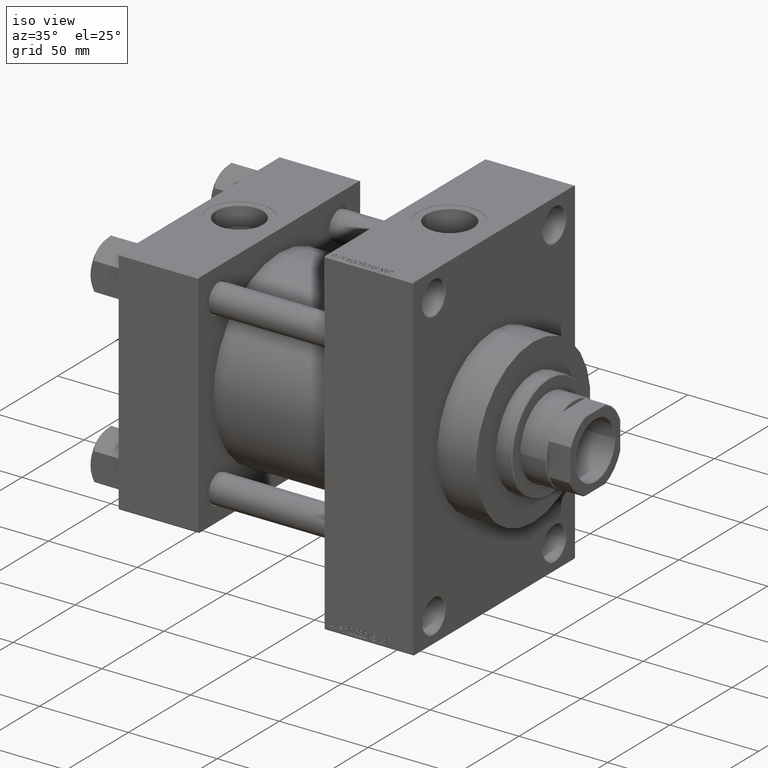
[diagram: clean part render]
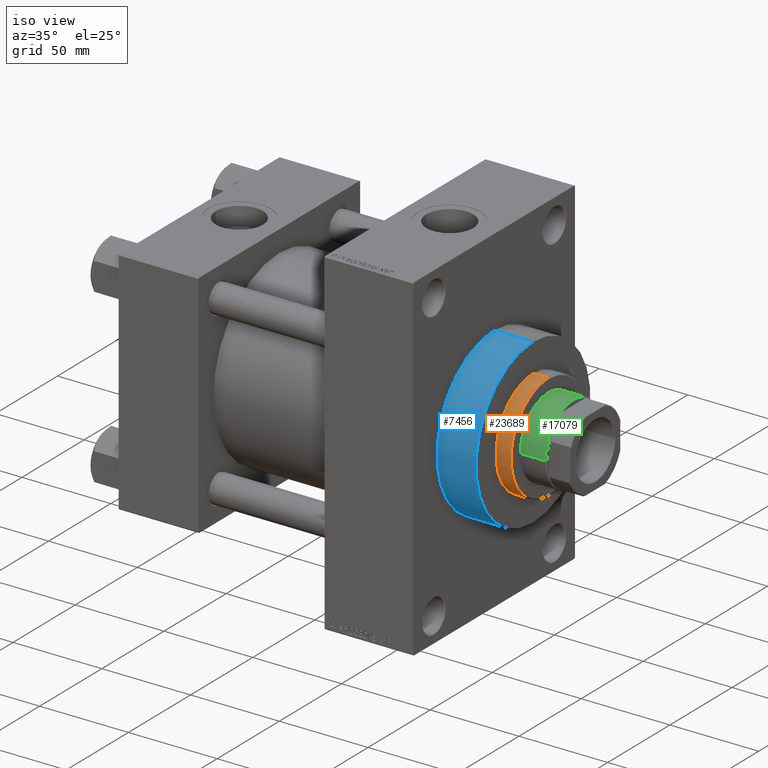
[diagram: same view with three faces highlighted in distinct colors, each labeled with its STEP entity id]
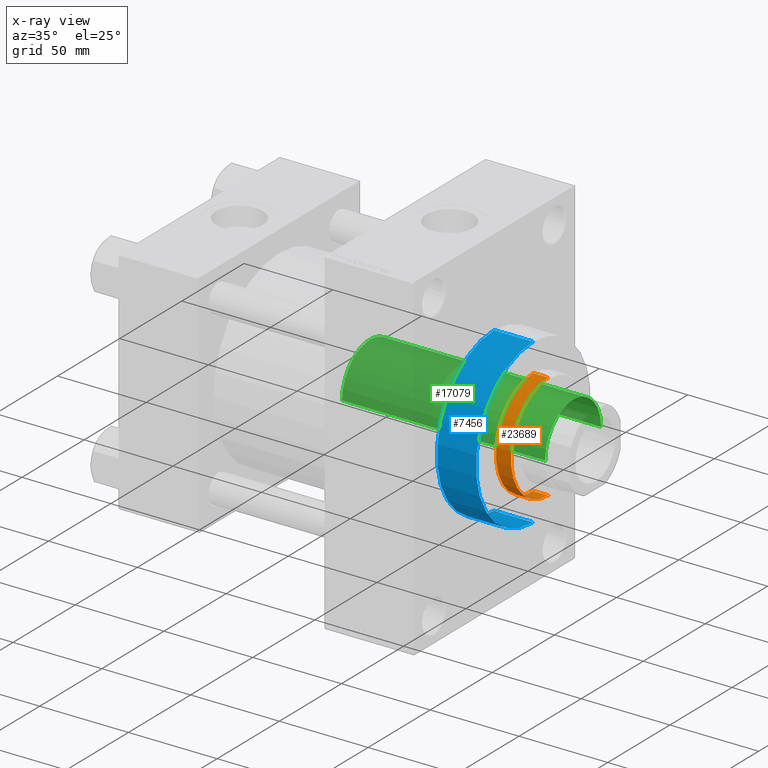
[diagram: x-ray of the same camera — body ghosted, the three highlighted faces saturated]
A machine part, iso view with three faces highlighted in distinct colors.
The next image is the same camera in x-ray (body ghosted, the three faces saturated) — at least one of them is partly hidden behind the body in this view.
Their STEP definitions:

[orange] entity #23689 — the highlighted cylindrical surface (partial cylindrical patch) has radius 30 mm, axis along (-1, -0, 0).
#811 = ORIENTED_EDGE ( 'NONE', *, *, #35080, .T. ) ;
#1441 = ORIENTED_EDGE ( 'NONE', *, *, #38314, .T. ) ;
#2021 = LINE ( 'NONE', #17381, #12984 ) ;
#4990 = DIRECTION ( 'NONE',  ( -0.000000000000000000, -0.000000000000000000, -1.000000000000000000 ) ) ;
#5243 = VECTOR ( 'NONE', #16647, 1000.000000000000000 ) ;
#5262 = DIRECTION ( 'NONE',  ( 0.000000000000000000, 0.000000000000000000, 1.000000000000000000 ) ) ;
#5978 = CYLINDRICAL_SURFACE ( 'NONE', #14801, 30.00000000000000000 ) ;
#6307 = DIRECTION ( 'NONE',  ( -0.000000000000000000, -0.000000000000000000, -1.000000000000000000 ) ) ;
#6448 = VERTEX_POINT ( 'NONE', #25435 ) ;
#6671 = AXIS2_PLACEMENT_3D ( 'NONE', #15850, #5262, #20132 ) ;
#8849 = LINE ( 'NONE', #24207, #5243 ) ;
#9256 = FACE_OUTER_BOUND ( 'NONE', #14648, .T. ) ;
#10855 = VERTEX_POINT ( 'NONE', #39505 ) ;
#12984 = VECTOR ( 'NONE', #6307, 1000.000000000000000 ) ;
#14648 = EDGE_LOOP ( 'NONE', ( #18535, #19294, #811, #1441 ) ) ;
#14801 = AXIS2_PLACEMENT_3D ( 'NONE', #28629, #4990, #47773 ) ;
#15850 = CARTESIAN_POINT ( 'NONE',  ( 0.000000000000000000, 0.000000000000000000, 43.25999999999999801 ) ) ;
#16647 = DIRECTION ( 'NONE',  ( -0.000000000000000000, -0.000000000000000000, -1.000000000000000000 ) ) ;
#17335 = CARTESIAN_POINT ( 'NONE',  ( 0.000000000000000000, 0.000000000000000000, 51.75999999999999091 ) ) ;
#17381 = CARTESIAN_POINT ( 'NONE',  ( -30.00000000000000000, 0.000000000000000000, 52.25999999999999801 ) ) ;
#18535 = ORIENTED_EDGE ( 'NONE', *, *, #25584, .F. ) ;
#18540 = CARTESIAN_POINT ( 'NONE',  ( -30.00000000000000000, 0.000000000000000000, 43.25999999999999801 ) ) ;
#19294 = ORIENTED_EDGE ( 'NONE', *, *, #38340, .T. ) ;
#20132 = DIRECTION ( 'NONE',  ( 1.000000000000000000, 0.000000000000000000, 0.000000000000000000 ) ) ;
#21698 = VERTEX_POINT ( 'NONE', #47049 ) ;
#23689 = ADVANCED_FACE ( 'NONE', ( #9256 ), #5978, .T. ) ;
#24207 = CARTESIAN_POINT ( 'NONE',  ( 30.00000000000000000, 3.673940397442059178E-15, 52.25999999999999801 ) ) ;
#24400 = CIRCLE ( 'NONE', #6671, 30.00000000000000000 ) ;
#25435 = CARTESIAN_POINT ( 'NONE',  ( 30.00000000000000000, 3.673940397442059178E-15, 51.75999999999999091 ) ) ;
#25584 = EDGE_CURVE ( 'NONE', #6448, #10855, #8849, .T. ) ;
#28370 = AXIS2_PLACEMENT_3D ( 'NONE', #17335, #44769, #40980 ) ;
#28405 = CIRCLE ( 'NONE', #28370, 30.00000000000000000 ) ;
#28490 = VERTEX_POINT ( 'NONE', #18540 ) ;
#28629 = CARTESIAN_POINT ( 'NONE',  ( 0.000000000000000000, 0.000000000000000000, 52.25999999999999801 ) ) ;
#35080 = EDGE_CURVE ( 'NONE', #21698, #28490, #2021, .T. ) ;
#38314 = EDGE_CURVE ( 'NONE', #28490, #10855, #24400, .T. ) ;
#38340 = EDGE_CURVE ( 'NONE', #6448, #21698, #28405, .T. ) ;
#39505 = CARTESIAN_POINT ( 'NONE',  ( 30.00000000000000000, 3.673940397442059178E-15, 43.25999999999999801 ) ) ;
#40980 = DIRECTION ( 'NONE',  ( 1.000000000000000000, 0.000000000000000000, 0.000000000000000000 ) ) ;
#44769 = DIRECTION ( 'NONE',  ( 0.000000000000000000, 0.000000000000000000, -1.000000000000000000 ) ) ;
#47049 = CARTESIAN_POINT ( 'NONE',  ( -30.00000000000000000, 0.000000000000000000, 51.75999999999999091 ) ) ;
#47773 = DIRECTION ( 'NONE',  ( -1.000000000000000000, 0.000000000000000000, 0.000000000000000000 ) ) ;

[blue] entity #7456 — the highlighted cylindrical surface (partial cylindrical patch) has radius 46 mm, axis along (-1, -0, -0).
#618 = CARTESIAN_POINT ( 'NONE',  ( 187.9999999999999716, 0.000000000000000000, 46.00000000000000000 ) ) ;
#4733 = ORIENTED_EDGE ( 'NONE', *, *, #41389, .T. ) ;
#4738 = DIRECTION ( 'NONE',  ( 1.000000000000000000, 0.000000000000000000, 0.000000000000000000 ) ) ;
#5358 = DIRECTION ( 'NONE',  ( -1.000000000000000000, -0.000000000000000000, -0.000000000000000000 ) ) ;
#7456 = ADVANCED_FACE ( 'NONE', ( #33805 ), #14658, .T. ) ;
#7693 = DIRECTION ( 'NONE',  ( -1.000000000000000000, -0.000000000000000000, -0.000000000000000000 ) ) ;
#8123 = CARTESIAN_POINT ( 'NONE',  ( 187.9999999999999716, 0.000000000000000000, 46.00000000000000000 ) ) ;
#8181 = LINE ( 'NONE', #618, #22100 ) ;
#9630 = AXIS2_PLACEMENT_3D ( 'NONE', #30020, #48665, #22736 ) ;
#13169 = AXIS2_PLACEMENT_3D ( 'NONE', #48980, #34127, #14723 ) ;
#14658 = CYLINDRICAL_SURFACE ( 'NONE', #9630, 46.00000000000000000 ) ;
#14723 = DIRECTION ( 'NONE',  ( 0.000000000000000000, 0.000000000000000000, -1.000000000000000000 ) ) ;
#19291 = EDGE_CURVE ( 'NONE', #29984, #33896, #22839, .T. ) ;
#19476 = ORIENTED_EDGE ( 'NONE', *, *, #28254, .T. ) ;
#19579 = CARTESIAN_POINT ( 'NONE',  ( 165.9999999999999716, 0.000000000000000000, 46.00000000000000000 ) ) ;
#19986 = ORIENTED_EDGE ( 'NONE', *, *, #20338, .F. ) ;
#20338 = EDGE_CURVE ( 'NONE', #33896, #27443, #48399, .T. ) ;
#22100 = VECTOR ( 'NONE', #7693, 1000.000000000000000 ) ;
#22736 = DIRECTION ( 'NONE',  ( 0.000000000000000000, 0.000000000000000000, 1.000000000000000000 ) ) ;
#22839 = CIRCLE ( 'NONE', #13169, 46.00000000000000000 ) ;
#24362 = DIRECTION ( 'NONE',  ( 0.000000000000000000, 0.000000000000000000, -1.000000000000000000 ) ) ;
#25096 = ORIENTED_EDGE ( 'NONE', *, *, #19291, .F. ) ;
#27443 = VERTEX_POINT ( 'NONE', #41634 ) ;
#28254 = EDGE_CURVE ( 'NONE', #30497, #27443, #47151, .T. ) ;
#29984 = VERTEX_POINT ( 'NONE', #8123 ) ;
#30020 = CARTESIAN_POINT ( 'NONE',  ( 187.9999999999999716, 0.000000000000000000, 0.000000000000000000 ) ) ;
#30497 = VERTEX_POINT ( 'NONE', #19579 ) ;
#33805 = FACE_OUTER_BOUND ( 'NONE', #43052, .T. ) ;
#33896 = VERTEX_POINT ( 'NONE', #42520 ) ;
#34127 = DIRECTION ( 'NONE',  ( 1.000000000000000000, 0.000000000000000000, 0.000000000000000000 ) ) ;
#35107 = AXIS2_PLACEMENT_3D ( 'NONE', #46768, #4738, #24362 ) ;
#36541 = VECTOR ( 'NONE', #5358, 1000.000000000000000 ) ;
#40838 = CARTESIAN_POINT ( 'NONE',  ( 187.9999999999999716, 5.633375276077824704E-15, -46.00000000000000000 ) ) ;
#41389 = EDGE_CURVE ( 'NONE', #29984, #30497, #8181, .T. ) ;
#41634 = CARTESIAN_POINT ( 'NONE',  ( 165.9999999999999716, 5.633375276077824704E-15, -46.00000000000000000 ) ) ;
#42520 = CARTESIAN_POINT ( 'NONE',  ( 187.9999999999999716, 5.633375276077824704E-15, -46.00000000000000000 ) ) ;
#43052 = EDGE_LOOP ( 'NONE', ( #19986, #25096, #4733, #19476 ) ) ;
#46768 = CARTESIAN_POINT ( 'NONE',  ( 165.9999999999999716, 0.000000000000000000, 0.000000000000000000 ) ) ;
#47151 = CIRCLE ( 'NONE', #35107, 46.00000000000000000 ) ;
#48399 = LINE ( 'NONE', #40838, #36541 ) ;
#48665 = DIRECTION ( 'NONE',  ( -1.000000000000000000, -0.000000000000000000, -0.000000000000000000 ) ) ;
#48980 = CARTESIAN_POINT ( 'NONE',  ( 187.9999999999999716, 0.000000000000000000, 0.000000000000000000 ) ) ;

[green] entity #17079 — the highlighted cylindrical surface (partial cylindrical patch) has radius 22.5 mm, axis along (-1, 0, 0).
#319 = DIRECTION ( 'NONE',  ( 1.000000000000000000, 0.000000000000000000, 0.000000000000000000 ) ) ;
#835 = ORIENTED_EDGE ( 'NONE', *, *, #41737, .T. ) ;
#838 = CARTESIAN_POINT ( 'NONE',  ( 22.50000000000000355, 2.755455298081545172E-15, 165.4999999999999716 ) ) ;
#1174 = VECTOR ( 'NONE', #6363, 1000.000000000000000 ) ;
#6363 = DIRECTION ( 'NONE',  ( -0.000000000000000000, -0.000000000000000000, -1.000000000000000000 ) ) ;
#7549 = CIRCLE ( 'NONE', #9114, 22.50000000000000355 ) ;
#9114 = AXIS2_PLACEMENT_3D ( 'NONE', #30545, #19456, #319 ) ;
#9921 = ORIENTED_EDGE ( 'NONE', *, *, #33601, .T. ) ;
#11724 = VERTEX_POINT ( 'NONE', #43149 ) ;
#13761 = EDGE_LOOP ( 'NONE', ( #21636, #835, #29869, #9921 ) ) ;
#17079 = ADVANCED_FACE ( 'NONE', ( #24135 ), #27402, .T. ) ;
#18061 = CARTESIAN_POINT ( 'NONE',  ( -22.50000000000000355, 0.000000000000000000, 51.00000000000000000 ) ) ;
#19456 = DIRECTION ( 'NONE',  ( 0.000000000000000000, 0.000000000000000000, -1.000000000000000000 ) ) ;
#20271 = VERTEX_POINT ( 'NONE', #838 ) ;
#21636 = ORIENTED_EDGE ( 'NONE', *, *, #43941, .F. ) ;
#21970 = AXIS2_PLACEMENT_3D ( 'NONE', #34963, #35459, #31682 ) ;
#22720 = LINE ( 'NONE', #49655, #1174 ) ;
#24135 = FACE_OUTER_BOUND ( 'NONE', #13761, .T. ) ;
#24491 = CARTESIAN_POINT ( 'NONE',  ( -22.50000000000000355, 0.000000000000000000, 166.0000000000000000 ) ) ;
#25036 = CIRCLE ( 'NONE', #33098, 22.50000000000000355 ) ;
#27402 = CYLINDRICAL_SURFACE ( 'NONE', #21970, 22.50000000000000355 ) ;
#28986 = DIRECTION ( 'NONE',  ( 0.000000000000000000, 0.000000000000000000, 1.000000000000000000 ) ) ;
#29739 = CARTESIAN_POINT ( 'NONE',  ( 0.000000000000000000, 0.000000000000000000, 51.00000000000000000 ) ) ;
#29869 = ORIENTED_EDGE ( 'NONE', *, *, #43154, .T. ) ;
#30130 = CARTESIAN_POINT ( 'NONE',  ( -22.50000000000000355, 0.000000000000000000, 165.4999999999999716 ) ) ;
#30545 = CARTESIAN_POINT ( 'NONE',  ( 0.000000000000000000, 0.000000000000000000, 165.4999999999999716 ) ) ;
#31682 = DIRECTION ( 'NONE',  ( -1.000000000000000000, 0.000000000000000000, 0.000000000000000000 ) ) ;
#33098 = AXIS2_PLACEMENT_3D ( 'NONE', #29739, #28986, #40817 ) ;
#33601 = EDGE_CURVE ( 'NONE', #44527, #11724, #25036, .T. ) ;
#34963 = CARTESIAN_POINT ( 'NONE',  ( 0.000000000000000000, 0.000000000000000000, 166.0000000000000000 ) ) ;
#35459 = DIRECTION ( 'NONE',  ( -0.000000000000000000, -0.000000000000000000, -1.000000000000000000 ) ) ;
#35821 = LINE ( 'NONE', #24491, #47748 ) ;
#40320 = DIRECTION ( 'NONE',  ( -0.000000000000000000, -0.000000000000000000, -1.000000000000000000 ) ) ;
#40817 = DIRECTION ( 'NONE',  ( 1.000000000000000000, 0.000000000000000000, 0.000000000000000000 ) ) ;
#41737 = EDGE_CURVE ( 'NONE', #20271, #43726, #7549, .T. ) ;
#43149 = CARTESIAN_POINT ( 'NONE',  ( 22.50000000000000355, 2.755455298081545172E-15, 51.00000000000000000 ) ) ;
#43154 = EDGE_CURVE ( 'NONE', #43726, #44527, #35821, .T. ) ;
#43726 = VERTEX_POINT ( 'NONE', #30130 ) ;
#43941 = EDGE_CURVE ( 'NONE', #20271, #11724, #22720, .T. ) ;
#44527 = VERTEX_POINT ( 'NONE', #18061 ) ;
#47748 = VECTOR ( 'NONE', #40320, 1000.000000000000000 ) ;
#49655 = CARTESIAN_POINT ( 'NONE',  ( 22.50000000000000355, 2.755455298081545172E-15, 166.0000000000000000 ) ) ;